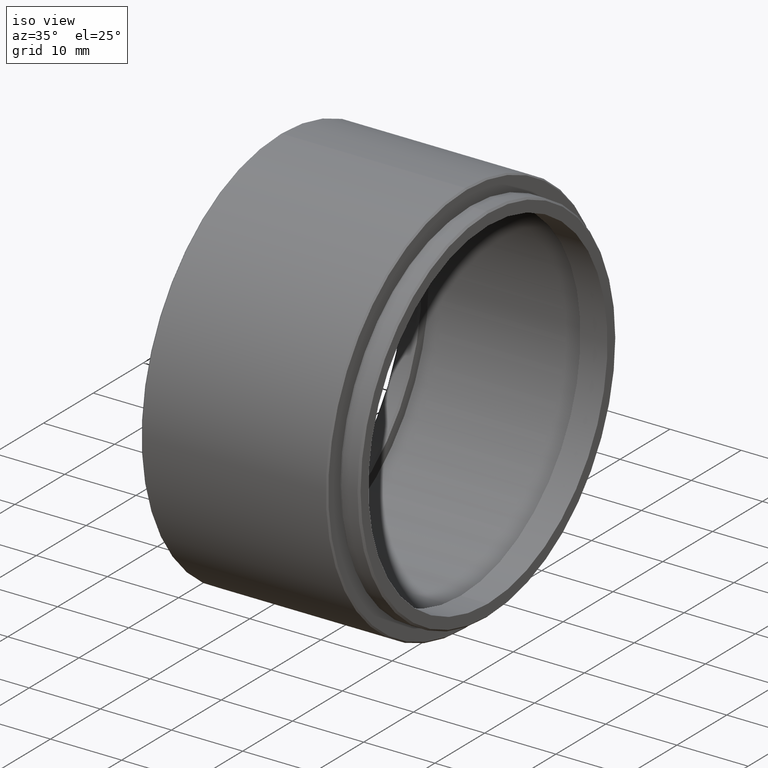
[diagram: clean part render]
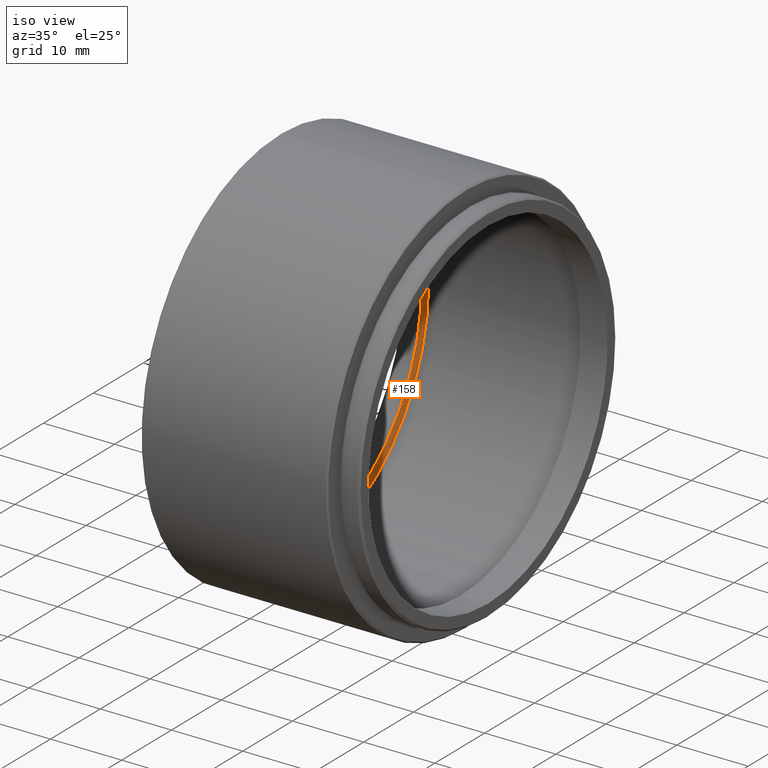
[diagram: same view with one face highlighted and labeled with its STEP entity id]
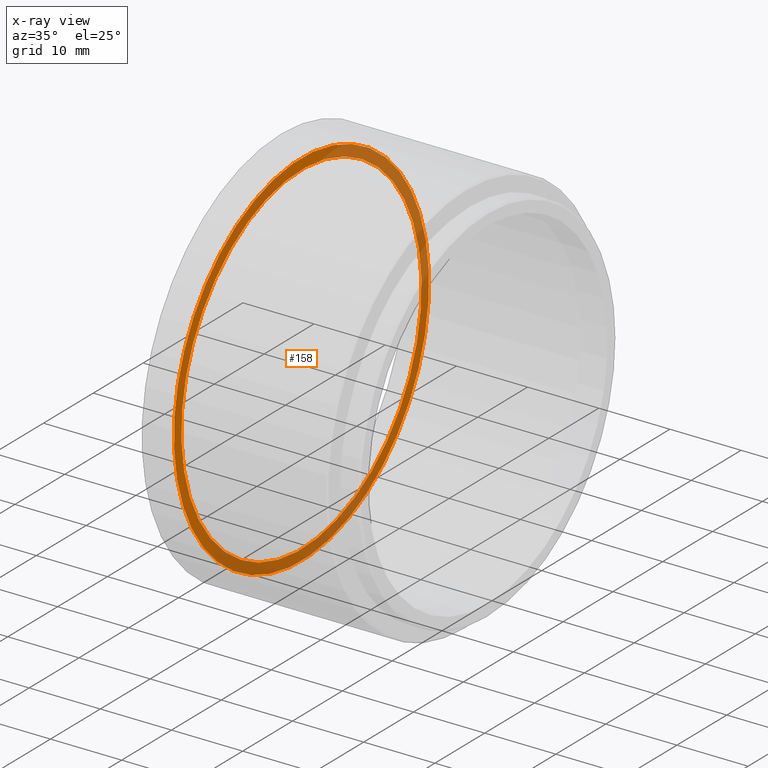
[diagram: x-ray of the same camera — body ghosted, the highlighted face saturated]
A machine part, iso view. The second image highlights one B-rep face of the part: STEP entity #158.
The next image is the same camera in x-ray: the body ghosted, the highlighted face saturated — about 44% of this face is hidden behind the body in this view.
In plain terms, the highlighted planar face has unit normal (-1, -0, 0).
Its self-contained STEP definition (entity closure, byte-faithful):
#15 = DIRECTION ( 'NONE',  ( 0.000000000000000000, -0.9288670834128058829, -0.3704132035338202900 ) ) ;
#37 = DIRECTION ( 'NONE',  ( -1.000000000000000000, 0.000000000000000000, 0.000000000000000000 ) ) ;
#57 = VERTEX_POINT ( 'NONE', #1212 ) ;
#86 = CIRCLE ( 'NONE', #1289, 24.09449999999999292 ) ;
#158 = ADVANCED_FACE ( 'NONE', ( #1555, #259 ), #1224, .F. ) ;
#259 = FACE_OUTER_BOUND ( 'NONE', #267, .T. ) ;
#267 = EDGE_LOOP ( 'NONE', ( #1220, #1133 ) ) ;
#318 = CIRCLE ( 'NONE', #1425, 24.09449999999999292 ) ;
#320 = DIRECTION ( 'NONE',  ( 0.000000000000000000, -0.9288670834128059939, -0.3704132035338204565 ) ) ;
#328 = CARTESIAN_POINT ( 'NONE',  ( -19.67400000000001015, -20.10857142857141966, 0.000000000000000000 ) ) ;
#451 = CIRCLE ( 'NONE', #1567, 25.59450000000000713 ) ;
#483 = EDGE_CURVE ( 'NONE', #1300, #57, #451, .T. ) ;
#489 = CARTESIAN_POINT ( 'NONE',  ( -19.67400000000001015, -43.88245999498048633, -9.480540737846366639 ) ) ;
#520 = ORIENTED_EDGE ( 'NONE', *, *, #1490, .T. ) ;
#527 = AXIS2_PLACEMENT_3D ( 'NONE', #1256, #1507, #1251 ) ;
#549 = CIRCLE ( 'NONE', #527, 25.59450000000000713 ) ;
#693 = CARTESIAN_POINT ( 'NONE',  ( -19.67400000000001015, -20.10857142857141966, 0.000000000000000000 ) ) ;
#712 = DIRECTION ( 'NONE',  ( -1.000000000000000000, -0.000000000000000000, 0.000000000000000000 ) ) ;
#791 = EDGE_CURVE ( 'NONE', #57, #1300, #549, .T. ) ;
#838 = DIRECTION ( 'NONE',  ( 0.000000000000000000, -0.9288670834128058829, -0.3704132035338204010 ) ) ;
#1005 = EDGE_LOOP ( 'NONE', ( #1024, #520 ) ) ;
#1024 = ORIENTED_EDGE ( 'NONE', *, *, #1111, .T. ) ;
#1060 = VERTEX_POINT ( 'NONE', #1295 ) ;
#1111 = EDGE_CURVE ( 'NONE', #1247, #1060, #86, .T. ) ;
#1127 = AXIS2_PLACEMENT_3D ( 'NONE', #1609, #712, #838 ) ;
#1133 = ORIENTED_EDGE ( 'NONE', *, *, #791, .T. ) ;
#1212 = CARTESIAN_POINT ( 'NONE',  ( -19.67400000000001015, 3.665317137837641681, 9.480540737846370192 ) ) ;
#1220 = ORIENTED_EDGE ( 'NONE', *, *, #483, .T. ) ;
#1224 = PLANE ( 'NONE',  #1127 ) ;
#1247 = VERTEX_POINT ( 'NONE', #1391 ) ;
#1251 = DIRECTION ( 'NONE',  ( 0.000000000000000000, -0.9288670834128058829, -0.3704132035338202900 ) ) ;
#1256 = CARTESIAN_POINT ( 'NONE',  ( -19.67400000000001015, -20.10857142857141966, 0.000000000000000000 ) ) ;
#1286 = CARTESIAN_POINT ( 'NONE',  ( -19.67400000000001015, -20.10857142857141966, 0.000000000000000000 ) ) ;
#1289 = AXIS2_PLACEMENT_3D ( 'NONE', #693, #37, #320 ) ;
#1295 = CARTESIAN_POINT ( 'NONE',  ( -19.67400000000001015, -42.48915936986126241, -8.924920932545630237 ) ) ;
#1300 = VERTEX_POINT ( 'NONE', #489 ) ;
#1391 = CARTESIAN_POINT ( 'NONE',  ( -19.67400000000001015, 2.272016512718428416, 8.924920932545633789 ) ) ;
#1423 = DIRECTION ( 'NONE',  ( 1.000000000000000000, -0.000000000000000000, -0.000000000000000000 ) ) ;
#1425 = AXIS2_PLACEMENT_3D ( 'NONE', #328, #1584, #1594 ) ;
#1490 = EDGE_CURVE ( 'NONE', #1060, #1247, #318, .T. ) ;
#1507 = DIRECTION ( 'NONE',  ( 1.000000000000000000, -0.000000000000000000, -0.000000000000000000 ) ) ;
#1555 = FACE_BOUND ( 'NONE', #1005, .T. ) ;
#1567 = AXIS2_PLACEMENT_3D ( 'NONE', #1286, #1423, #15 ) ;
#1584 = DIRECTION ( 'NONE',  ( -1.000000000000000000, 0.000000000000000000, 0.000000000000000000 ) ) ;
#1594 = DIRECTION ( 'NONE',  ( 0.000000000000000000, -0.9288670834128059939, -0.3704132035338204565 ) ) ;
#1609 = CARTESIAN_POINT ( 'NONE',  ( -19.67400000000001015, -20.10857142857141966, 0.000000000000000000 ) ) ;